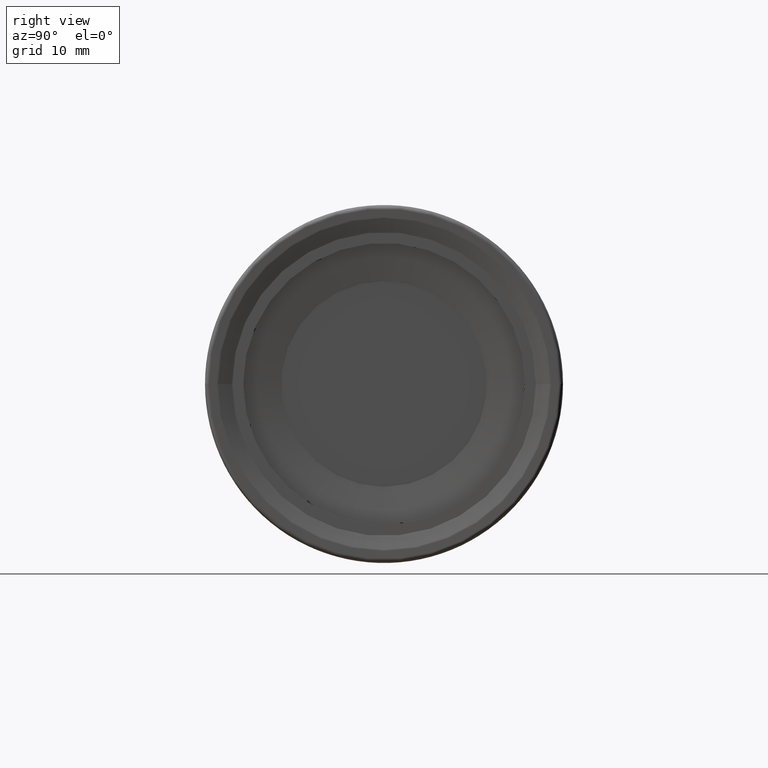
[diagram: clean part render]
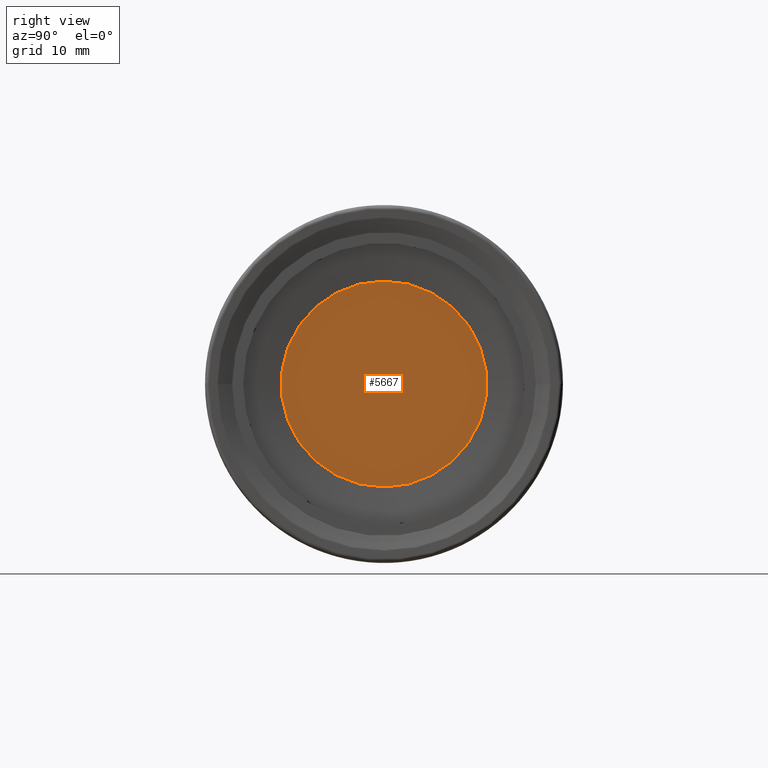
[diagram: same view with one face highlighted and labeled with its STEP entity id]
A machine part, right view. The second image highlights one B-rep face of the part: STEP entity #5667.
In plain terms, the highlighted planar face has unit normal (1, 0, -0).
Its self-contained STEP definition (entity closure, byte-faithful):
#624 = CARTESIAN_POINT ( 'NONE',  ( -1.399999999999999900, 0.0000000000000000000, 0.0000000000000000000 ) ) ;
#625 = DIRECTION ( 'NONE',  ( 1.000000000000000000, -0.0000000000000000000, -0.0000000000000000000 ) ) ;
#626 = DIRECTION ( 'NONE',  ( 0.0000000000000000000, 0.0000000000000000000, -1.000000000000000000 ) ) ;
#1412 = CARTESIAN_POINT ( 'NONE',  ( -1.399999999999999200, -1.158722531986733500E-014, 0.0000000000000000000 ) ) ;
#1414 = FACE_OUTER_BOUND ( 'NONE', #3827, .T. ) ;
#1415 = PLANE ( 'NONE',  #8418 ) ;
#1417 = DIRECTION ( 'NONE',  ( 1.000000000000000000, 0.0000000000000000000, -0.0000000000000000000 ) ) ;
#1418 = DIRECTION ( 'NONE',  ( -0.0000000000000000000, 0.0000000000000000000, -1.000000000000000000 ) ) ;
#1644 = ORIENTED_EDGE ( 'NONE', *, *, #5731, .T. ) ;
#1645 = ORIENTED_EDGE ( 'NONE', *, *, #8348, .T. ) ;
#2584 = CARTESIAN_POINT ( 'NONE',  ( -1.399999999999999900, 0.0000000000000000000, 0.0000000000000000000 ) ) ;
#2585 = DIRECTION ( 'NONE',  ( 1.000000000000000000, -0.0000000000000000000, -0.0000000000000000000 ) ) ;
#2586 = DIRECTION ( 'NONE',  ( 0.0000000000000000000, 0.0000000000000000000, -1.000000000000000000 ) ) ;
#3827 = EDGE_LOOP ( 'NONE', ( #1644, #1645 ) ) ;
#3945 = CIRCLE ( 'NONE', #6261, 11.50000000000000000 ) ;
#4082 = CARTESIAN_POINT ( 'NONE',  ( -1.399999999999999900, 1.674651046774895300E-015, 11.50000000000000000 ) ) ;
#4089 = CARTESIAN_POINT ( 'NONE',  ( -1.399999999999999900, 0.0000000000000000000, -11.50000000000000000 ) ) ;
#5667 = ADVANCED_FACE ( 'NONE', ( #1414 ), #1415, .T. ) ;
#5731 = EDGE_CURVE ( 'NONE', #9062, #9055, #7071, .T. ) ;
#6261 = AXIS2_PLACEMENT_3D ( 'NONE', #624, #625, #626 ) ;
#7071 = CIRCLE ( 'NONE', #7085, 11.50000000000000000 ) ;
#7085 = AXIS2_PLACEMENT_3D ( 'NONE', #2584, #2585, #2586 ) ;
#8348 = EDGE_CURVE ( 'NONE', #9055, #9062, #3945, .T. ) ;
#8418 = AXIS2_PLACEMENT_3D ( 'NONE', #1412, #1417, #1418 ) ;
#9055 = VERTEX_POINT ( 'NONE', #4082 ) ;
#9062 = VERTEX_POINT ( 'NONE', #4089 ) ;